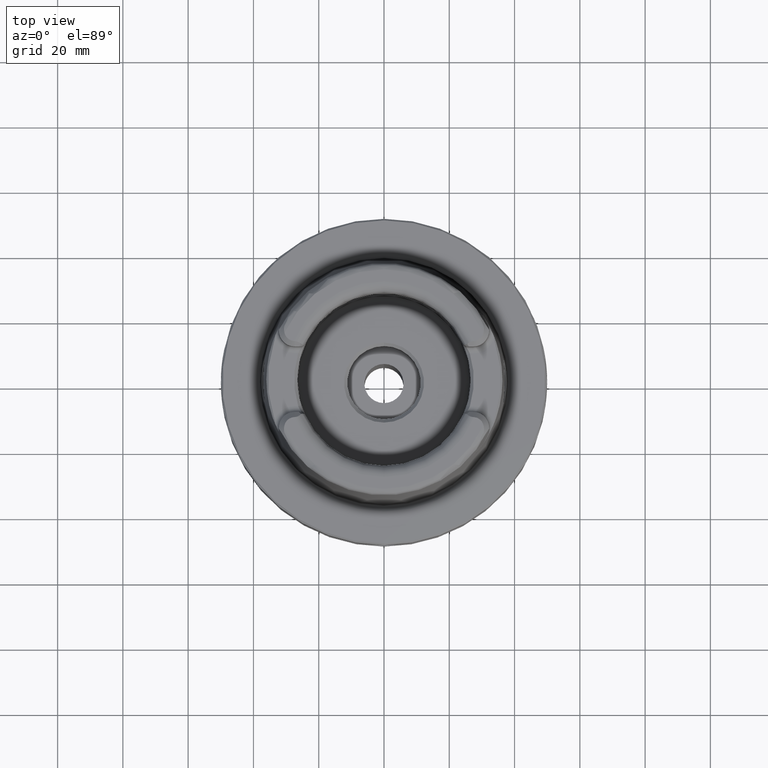
[diagram: clean part render]
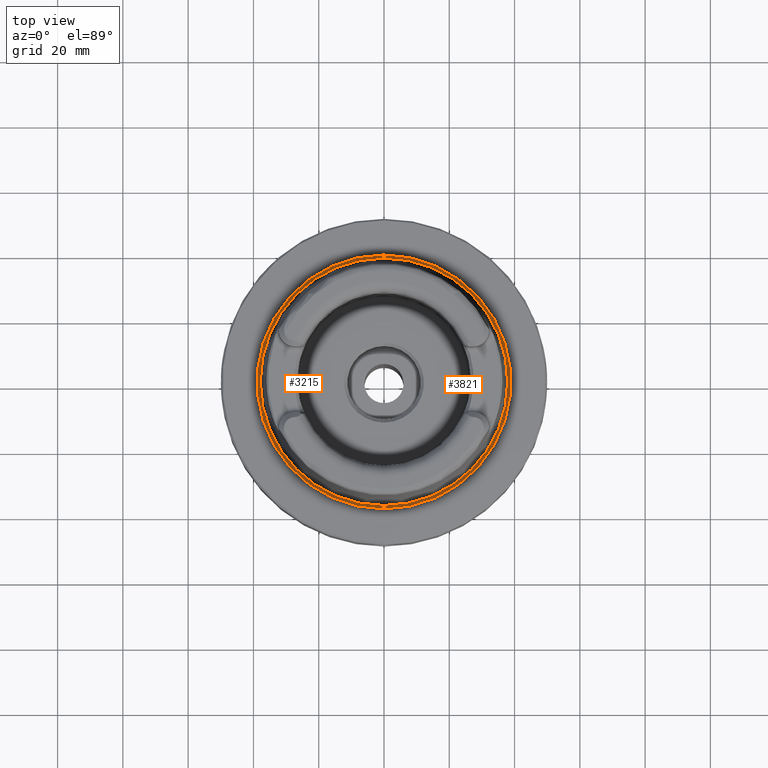
[diagram: same view with one multi-face feature highlighted, each face labeled with its STEP entity id]
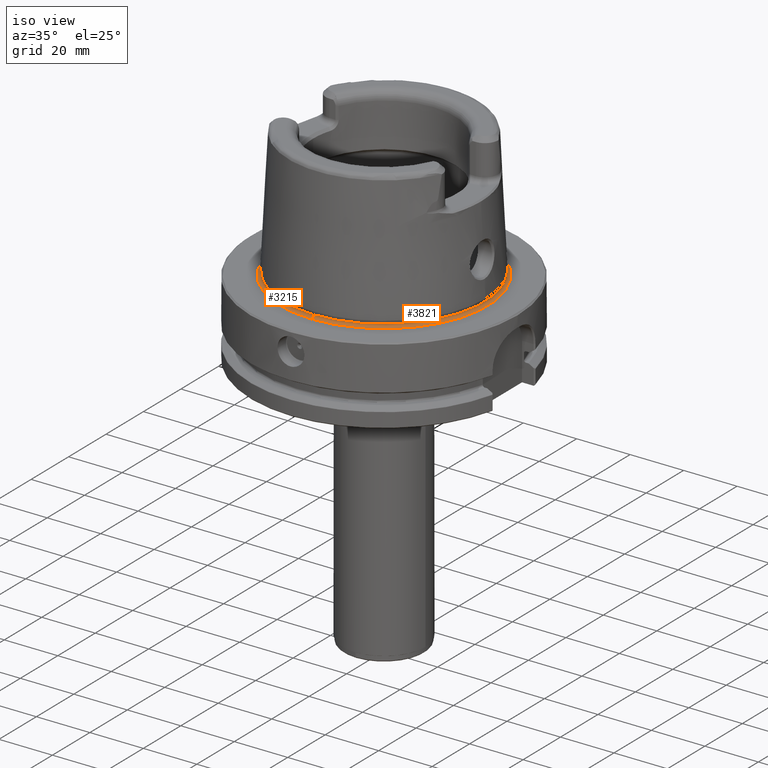
[diagram: same view with one multi-face feature highlighted, each face labeled with its STEP entity id]
A machine part, top view. The highlighted faces form ONE feature: a constant-radius fillet chain: 2 tangent blend faces with common blend radius 1 mm. The faces share edges in the B-rep.
A second angle (iso view) of the same feature is appended — it is thin or edge-on in the first view.
Their STEP definitions:
[1] entity #3821 (Torus):
#1567=EDGE_CURVE('NONE',#1645,#2973,#4436,.F.);
#1645=VERTEX_POINT('NONE',#4519);
#2973=VERTEX_POINT('NONE',#5982);
#3083=EDGE_CURVE('NONE',#4029,#1645,#6102,.T.);
#3749=EDGE_CURVE('NONE',#4029,#3875,#6838,.T.);
#3821=ADVANCED_FACE('NONE',(#6917),#6918,.F.);
#3875=VERTEX_POINT('NONE',#6977);
#4029=VERTEX_POINT('NONE',#7145);
#4235=EDGE_CURVE('NONE',#3875,#2973,#7367,.T.);
#4436=CIRCLE('',#7768,38.8908190451028);
#4519=CARTESIAN_POINT('',(-4.81209555165856E-015,-38.8908190451028,-0.215925826289064));
#5982=CARTESIAN_POINT('',(0.0,38.8908190451028,-0.215925826289064));
#6102=CIRCLE('',#11742,1.00000000000019);
#6838=CIRCLE('',#13632,37.632);
#6917=FACE_OUTER_BOUND('',#13899,.T.);
#6918=TOROIDAL_SURFACE('',#13900,38.6320000000002,1.00000000000019);
#6977=CARTESIAN_POINT('',(0.0,37.632,0.750000000000187));
#7145=CARTESIAN_POINT('',(-4.60859083455132E-015,-37.632,0.750000000000187));
#7367=CIRCLE('',#15194,1.00000000000019);
#7768=AXIS2_PLACEMENT_3D('',#15524,#15525,#15526);
#11742=AXIS2_PLACEMENT_3D('',#17361,#17362,#17363);
#13632=AXIS2_PLACEMENT_3D('',#18203,#18204,#18205);
#13899=EDGE_LOOP('',(#18283,#18284,#18285,#18286));
#13900=AXIS2_PLACEMENT_3D('',#18287,#18288,#18289);
#15194=AXIS2_PLACEMENT_3D('',#18742,#18743,#18744);
#15524=CARTESIAN_POINT('',(0.0,0.0,-0.215925826289061));
#15525=DIRECTION('',(0.0,0.0,-1.0));
#15526=DIRECTION('',(0.0,1.0,0.0));
#17361=CARTESIAN_POINT('',(-4.73105551446608E-015,-38.6320000000002,0.750000000000187));
#17362=DIRECTION('',(-1.0,1.22464679914735E-016,4.34426707704185E-036));
#17363=DIRECTION('',(1.22464679914735E-016,1.0,1.07094451841138E-067));
#18203=CARTESIAN_POINT('',(0.0,4.34426707704266E-036,0.750000000000187));
#18204=DIRECTION('',(0.0,0.0,1.0));
#18205=DIRECTION('',(0.0,1.0,-0.0));
#18283=ORIENTED_EDGE('',*,*,#3749,.F.);
#18284=ORIENTED_EDGE('',*,*,#3083,.T.);
#18285=ORIENTED_EDGE('',*,*,#1567,.T.);
#18286=ORIENTED_EDGE('',*,*,#4235,.F.);
#18287=CARTESIAN_POINT('',(0.0,0.0,0.750000000000187));
#18288=DIRECTION('',(0.0,-3.54736327246885E-020,1.0));
#18289=DIRECTION('',(-0.0,1.0,3.54736327246885E-020));
#18742=CARTESIAN_POINT('',(0.0,38.6320000000002,0.750000000000187));
#18743=DIRECTION('',(1.0,0.0,0.0));
#18744=DIRECTION('',(0.0,-0.0,1.0));
[2] entity #3215 (Torus):
#1645=VERTEX_POINT('NONE',#4519);
#2973=VERTEX_POINT('NONE',#5982);
#3083=EDGE_CURVE('NONE',#4029,#1645,#6102,.T.);
#3189=EDGE_CURVE('NONE',#2973,#1645,#6218,.F.);
#3215=ADVANCED_FACE('NONE',(#6246),#6247,.F.);
#3635=EDGE_CURVE('NONE',#3875,#4029,#6712,.T.);
#3875=VERTEX_POINT('NONE',#6977);
#4029=VERTEX_POINT('NONE',#7145);
#4235=EDGE_CURVE('NONE',#3875,#2973,#7367,.T.);
#4519=CARTESIAN_POINT('',(-4.81209555165856E-015,-38.8908190451028,-0.215925826289064));
#5982=CARTESIAN_POINT('',(0.0,38.8908190451028,-0.215925826289064));
#6102=CIRCLE('',#11742,1.00000000000019);
#6218=CIRCLE('',#12155,38.8908190451028);
#6246=FACE_OUTER_BOUND('',#12224,.T.);
#6247=TOROIDAL_SURFACE('',#12225,38.6320000000002,1.00000000000019);
#6712=CIRCLE('',#13326,37.632);
#6977=CARTESIAN_POINT('',(0.0,37.632,0.750000000000187));
#7145=CARTESIAN_POINT('',(-4.60859083455132E-015,-37.632,0.750000000000187));
#7367=CIRCLE('',#15194,1.00000000000019);
#11742=AXIS2_PLACEMENT_3D('',#17361,#17362,#17363);
#12155=AXIS2_PLACEMENT_3D('',#17469,#17470,#17471);
#12224=EDGE_LOOP('',(#17503,#17504,#17505,#17506));
#12225=AXIS2_PLACEMENT_3D('',#17507,#17508,#17509);
#13326=AXIS2_PLACEMENT_3D('',#18031,#18032,#18033);
#15194=AXIS2_PLACEMENT_3D('',#18742,#18743,#18744);
#17361=CARTESIAN_POINT('',(-4.73105551446608E-015,-38.6320000000002,0.750000000000187));
#17362=DIRECTION('',(-1.0,1.22464679914735E-016,4.34426707704185E-036));
#17363=DIRECTION('',(1.22464679914735E-016,1.0,1.07094451841138E-067));
#17469=CARTESIAN_POINT('',(0.0,0.0,-0.215925826289061));
#17470=DIRECTION('',(0.0,0.0,-1.0));
#17471=DIRECTION('',(0.0,1.0,0.0));
#17503=ORIENTED_EDGE('',*,*,#3635,.F.);
#17504=ORIENTED_EDGE('',*,*,#4235,.T.);
#17505=ORIENTED_EDGE('',*,*,#3189,.T.);
#17506=ORIENTED_EDGE('',*,*,#3083,.F.);
#17507=CARTESIAN_POINT('',(0.0,0.0,0.750000000000187));
#17508=DIRECTION('',(0.0,-3.54736327246885E-020,1.0));
#17509=DIRECTION('',(-0.0,1.0,3.54736327246885E-020));
#18031=CARTESIAN_POINT('',(0.0,4.34426707704266E-036,0.750000000000187));
#18032=DIRECTION('',(0.0,0.0,1.0));
#18033=DIRECTION('',(0.0,1.0,-0.0));
#18742=CARTESIAN_POINT('',(0.0,38.6320000000002,0.750000000000187));
#18743=DIRECTION('',(1.0,0.0,0.0));
#18744=DIRECTION('',(0.0,-0.0,1.0));